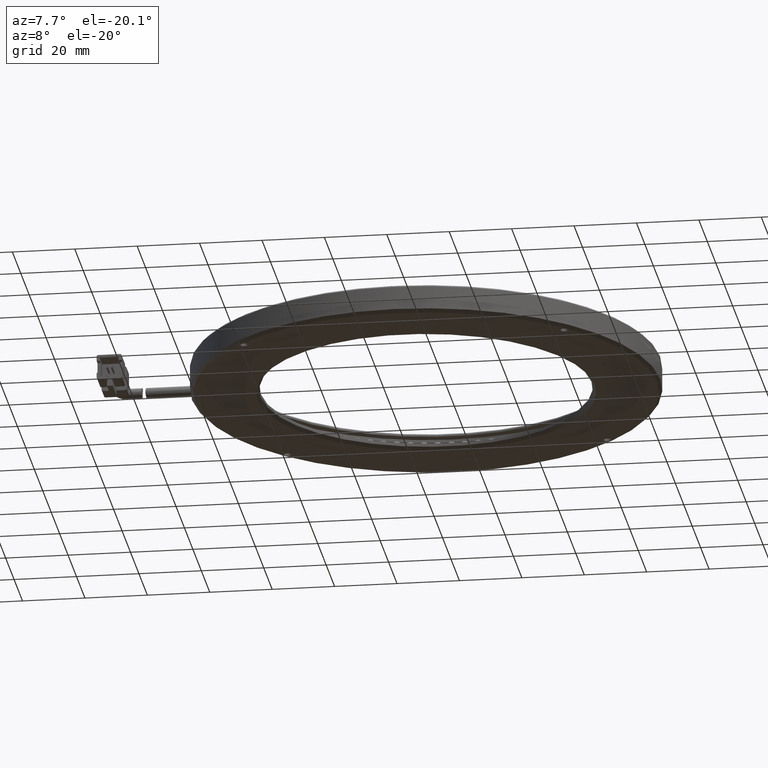
[diagram: clean part render]
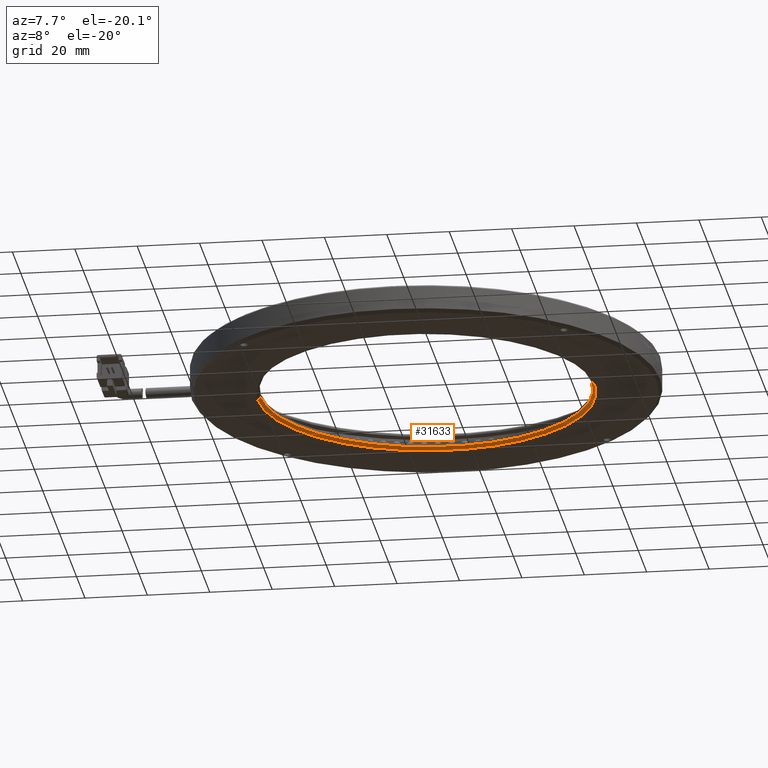
[diagram: same view with one face highlighted and labeled with its STEP entity id]
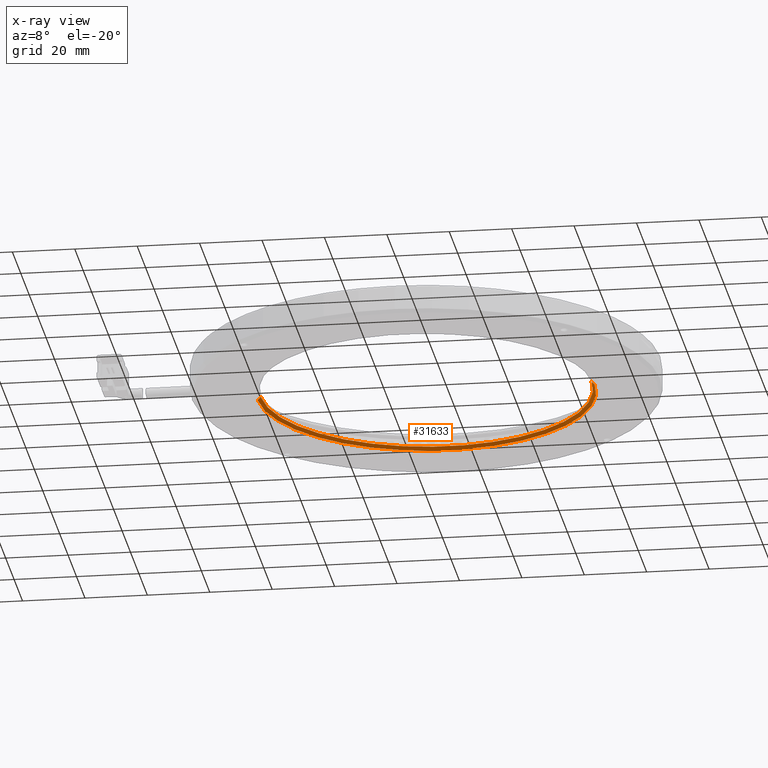
[diagram: x-ray of the same camera — body ghosted, the highlighted face saturated]
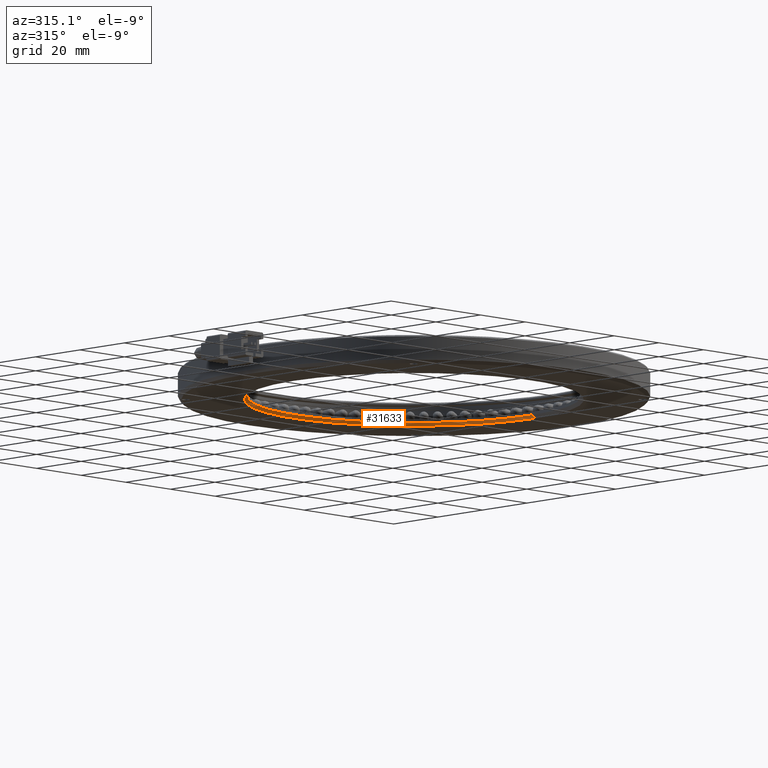
[diagram: same view with one face highlighted and labeled with its STEP entity id]
A machine part, auxiliary view. The second image highlights one B-rep face of the part: STEP entity #31633.
The next image is the same camera in x-ray: the body ghosted, the highlighted face saturated — about 0% of this face is hidden behind the body in this view.
A second angle (auxiliary view) of the same face is appended — the face is thin or edge-on in the first view.
In plain terms, the highlighted conical surface has half-angle 45 deg.
Its self-contained STEP definition (entity closure, byte-faithful):
#380 = CARTESIAN_POINT ( 'NONE',  ( 64.82239847715733600, 1.095939086294426700, -3.500000000000063900 ) ) ;
#1331 = CONICAL_SURFACE ( 'NONE', #63461, 53.99999999999997900, 0.7853981633974378400 ) ;
#1944 = CIRCLE ( 'NONE', #47055, 53.00000000000000700 ) ;
#2699 = VERTEX_POINT ( 'NONE', #30801 ) ;
#3937 = DIRECTION ( 'NONE',  ( -0.0000000000000000000, -0.0000000000000000000, -1.000000000000000000 ) ) ;
#4705 = LINE ( 'NONE', #380, #35199 ) ;
#5214 = DIRECTION ( 'NONE',  ( -0.7071067811865401300, 0.0000000000000000000, -0.7071067811865549000 ) ) ;
#5637 = DIRECTION ( 'NONE',  ( 0.0000000000000000000, 0.0000000000000000000, -1.000000000000000000 ) ) ;
#9345 = VERTEX_POINT ( 'NONE', #52232 ) ;
#10961 = EDGE_CURVE ( 'NONE', #9345, #2699, #38950, .T. ) ;
#12250 = CARTESIAN_POINT ( 'NONE',  ( 63.82239847715735700, 1.095939086294426700, -2.500000000000068800 ) ) ;
#12657 = DIRECTION ( 'NONE',  ( 0.7071067811865401300, 8.659560562354842900E-017, -0.7071067811865549000 ) ) ;
#15069 = AXIS2_PLACEMENT_3D ( 'NONE', #42091, #5637, #48165 ) ;
#22428 = DIRECTION ( 'NONE',  ( -1.000000000000000000, 0.0000000000000000000, 0.0000000000000000000 ) ) ;
#23387 = ORIENTED_EDGE ( 'NONE', *, *, #65234, .F. ) ;
#29479 = CARTESIAN_POINT ( 'NONE',  ( -43.17760152284262900, 1.095939086294420100, -3.500000000000063900 ) ) ;
#30801 = CARTESIAN_POINT ( 'NONE',  ( 64.82239847715733600, 1.095939086294426700, -3.500000000000063100 ) ) ;
#31206 = LINE ( 'NONE', #29479, #72009 ) ;
#31633 = ADVANCED_FACE ( 'NONE', ( #61309 ), #1331, .F. ) ;
#35199 = VECTOR ( 'NONE', #12657, 1000.000000000000000 ) ;
#38950 = CIRCLE ( 'NONE', #15069, 53.99999999999997900 ) ;
#39219 = EDGE_CURVE ( 'NONE', #66236, #60451, #1944, .T. ) ;
#40392 = CARTESIAN_POINT ( 'NONE',  ( 10.82239847715735200, 1.095939086294420100, -2.500000000000068800 ) ) ;
#42091 = CARTESIAN_POINT ( 'NONE',  ( 10.82239847715735200, 1.095939086294420100, -3.500000000000063100 ) ) ;
#43370 = ORIENTED_EDGE ( 'NONE', *, *, #39219, .F. ) ;
#44371 = EDGE_LOOP ( 'NONE', ( #23387, #43370, #48355, #63478 ) ) ;
#45561 = CARTESIAN_POINT ( 'NONE',  ( -42.17760152284265000, 1.095939086294420100, -2.500000000000070200 ) ) ;
#46520 = DIRECTION ( 'NONE',  ( -1.000000000000000000, 0.0000000000000000000, -2.454797371665292700E-017 ) ) ;
#47055 = AXIS2_PLACEMENT_3D ( 'NONE', #40392, #3937, #46520 ) ;
#48165 = DIRECTION ( 'NONE',  ( -1.000000000000000000, 0.0000000000000000000, 0.0000000000000000000 ) ) ;
#48355 = ORIENTED_EDGE ( 'NONE', *, *, #74801, .T. ) ;
#52232 = CARTESIAN_POINT ( 'NONE',  ( -43.17760152284262900, 1.095939086294420100, -3.500000000000063100 ) ) ;
#60451 = VERTEX_POINT ( 'NONE', #12250 ) ;
#61309 = FACE_OUTER_BOUND ( 'NONE', #44371, .T. ) ;
#63461 = AXIS2_PLACEMENT_3D ( 'NONE', #76961, #76684, #22428 ) ;
#63478 = ORIENTED_EDGE ( 'NONE', *, *, #10961, .T. ) ;
#65234 = EDGE_CURVE ( 'NONE', #60451, #2699, #4705, .T. ) ;
#66236 = VERTEX_POINT ( 'NONE', #45561 ) ;
#72009 = VECTOR ( 'NONE', #5214, 1000.000000000000000 ) ;
#74801 = EDGE_CURVE ( 'NONE', #66236, #9345, #31206, .T. ) ;
#76684 = DIRECTION ( 'NONE',  ( 0.0000000000000000000, 0.0000000000000000000, -1.000000000000000000 ) ) ;
#76961 = CARTESIAN_POINT ( 'NONE',  ( 10.82239847715735200, 1.095939086294420100, -3.500000000000063900 ) ) ;